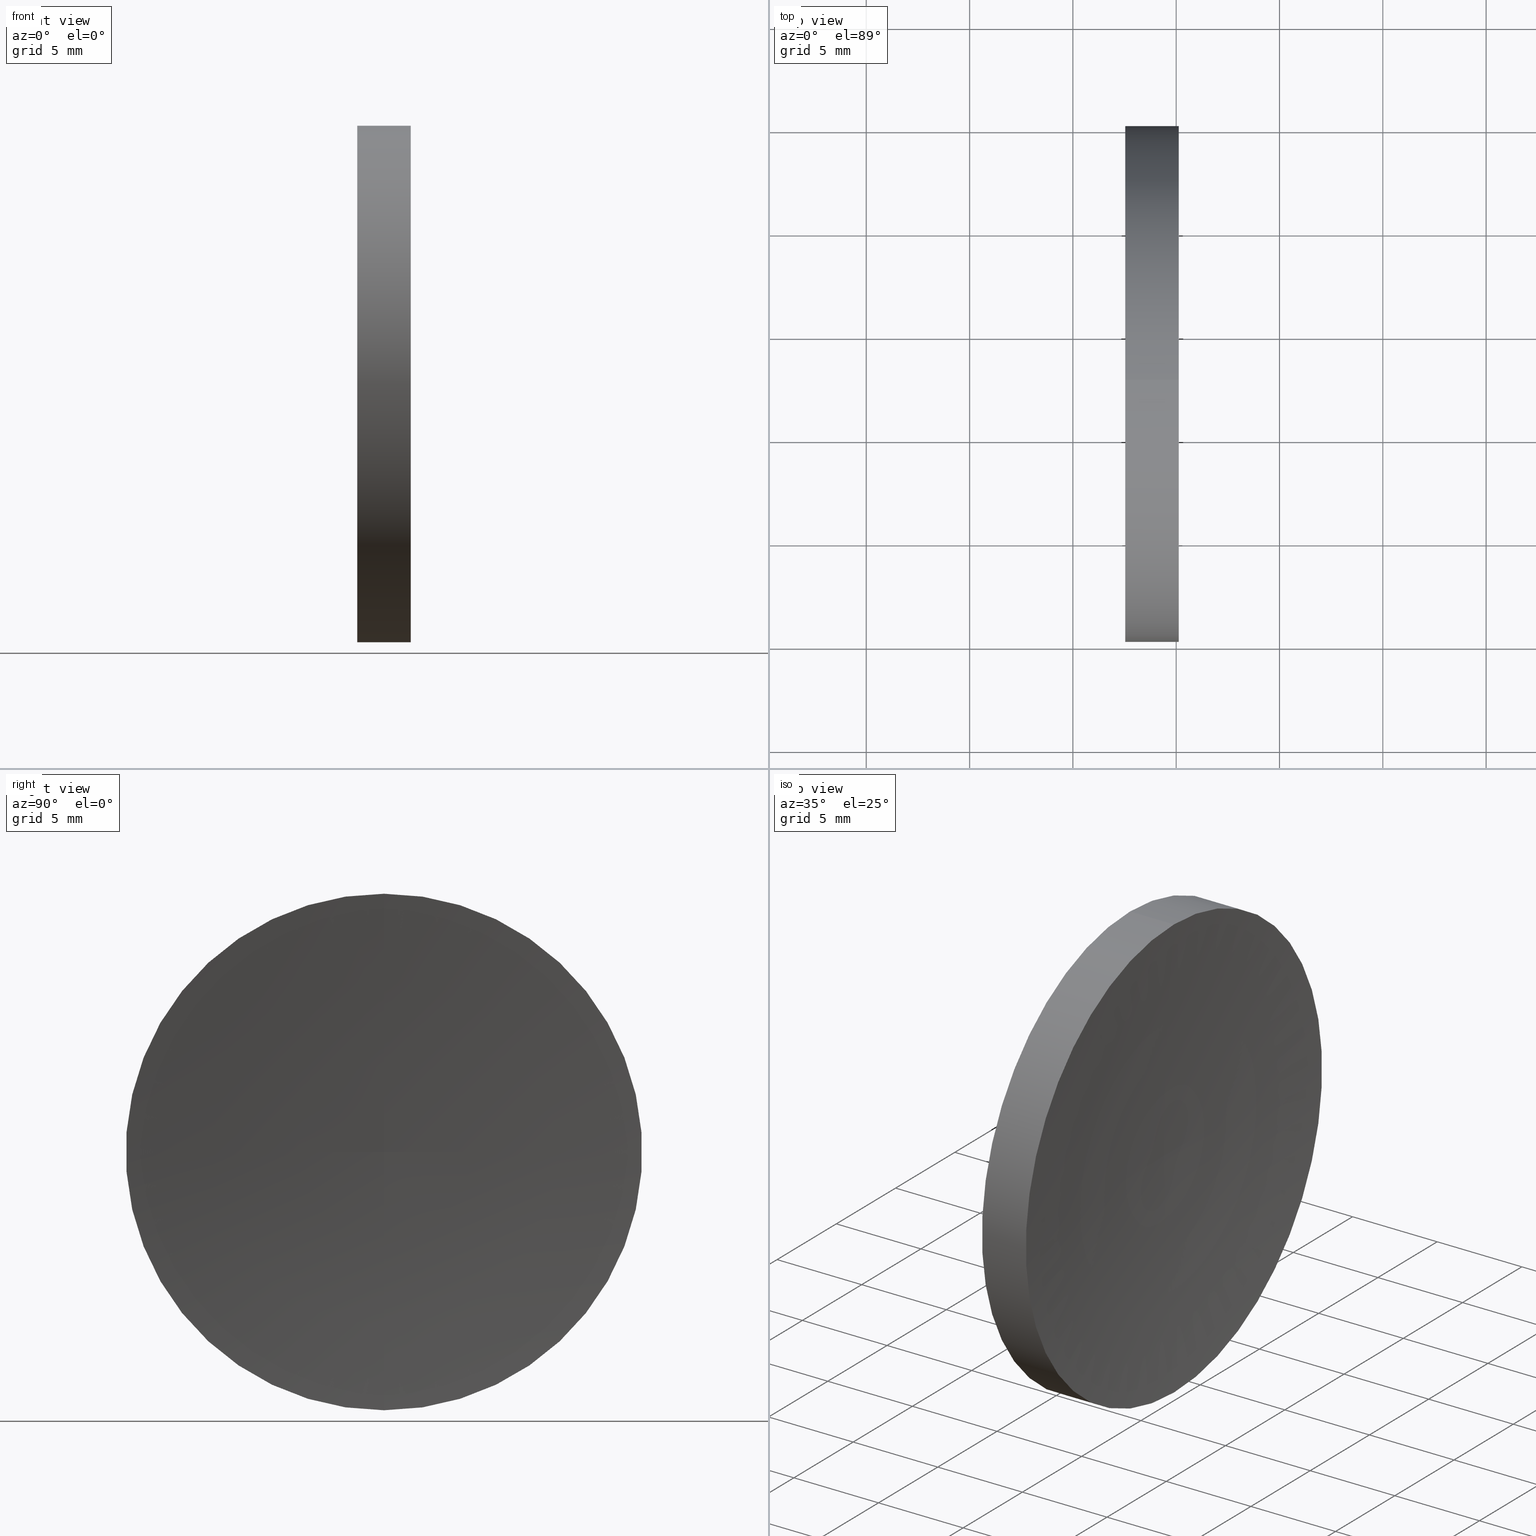
[diagram: canonical four-view strip — front | top / right | iso, engineering-drawing reading convention]
A machine part, canonical four-view strip (front | top / right | iso — engineering-drawing reading convention). The complete STEP part file that produces these views, byte-faithful:
ISO-10303-21;
HEADER;
FILE_DESCRIPTION (( 'STEP AP214' ),
    '1' );
FILE_NAME ('120039.STEP',
    '2019-06-17T05:50:44',
    ( '' ),
    ( '' ),
    'SwSTEP 2.0',
    'SolidWorks 2016',
    '' );
FILE_SCHEMA (( 'AUTOMOTIVE_DESIGN' ));
ENDSEC;

DATA;
#1 = APPLICATION_PROTOCOL_DEFINITION ( 'draft international standard', 'automotive_design', 1998, #132 ) ;
#2 = VECTOR ( 'NONE', #149, 1000.000000000000000 ) ;
#3 = TOROIDAL_SURFACE ( 'NONE', #25, 0.1459030683174933300, 129.1300000000000000 ) ;
#4 = PLANE ( 'NONE',  #71 ) ;
#5 = ORIENTED_EDGE ( 'NONE', *, *, #35, .F. ) ;
#6 = EDGE_LOOP ( 'NONE', ( #153, #41 ) ) ;
#7 = ADVANCED_BREP_SHAPE_REPRESENTATION ( '120039', ( #106, #99 ), #103 ) ;
#8 = ORIENTED_EDGE ( 'NONE', *, *, #87, .T. ) ;
#9 = EDGE_CURVE ( 'NONE', #34, #128, #107, .T. ) ;
#10 = DIRECTION ( 'NONE',  ( 1.000000000000000000, 0.0000000000000000000, 0.0000000000000000000 ) ) ;
#11 = SURFACE_STYLE_USAGE ( .BOTH. , #51 ) ;
#12 = COLOUR_RGB ( '',1.000000000000000000, 1.000000000000000000, 1.000000000000000000 ) ;
#13 =( NAMED_UNIT ( * ) PLANE_ANGLE_UNIT ( ) SI_UNIT ( $, .RADIAN. ) );
#14 = CIRCLE ( 'NONE', #154, 12.49999999999999600 ) ;
#15 = CARTESIAN_POINT ( 'NONE',  ( 56.10091507999716500, 32.61076812922678400, 0.0000000000000000000 ) ) ;
#16 = ORIENTED_EDGE ( 'NONE', *, *, #70, .F. ) ;
#17 = DIRECTION ( 'NONE',  ( 0.0000000000000000000, -1.074714458903001400E-016, 1.000000000000000000 ) ) ;
#18 = CARTESIAN_POINT ( 'NONE',  ( 57.53233705252611700, 32.61076812922678400, 0.0000000000000000000 ) ) ;
#19 =( GEOMETRIC_REPRESENTATION_CONTEXT ( 3 ) GLOBAL_UNCERTAINTY_ASSIGNED_CONTEXT ( ( #136 ) ) GLOBAL_UNIT_ASSIGNED_CONTEXT ( ( #37, #13, #152 ) ) REPRESENTATION_CONTEXT ( 'NONE', 'WORKASPACE' ) );
#20 = CARTESIAN_POINT ( 'NONE',  ( 188.6622546250803800, 32.61076812922678400, -0.1459030683174933300 ) ) ;
#21 = UNCERTAINTY_MEASURE_WITH_UNIT (LENGTH_MEASURE( 1.000000000000000100E-005 ), #165, 'distance_accuracy_value', 'NONE');
#22 = DIRECTION ( 'NONE',  ( 0.0000000000000000000, 0.0000000000000000000, -1.000000000000000000 ) ) ;
#23 = DIRECTION ( 'NONE',  ( 0.0000000000000000000, 0.0000000000000000000, 1.000000000000000000 ) ) ;
#24 =( NAMED_UNIT ( * ) PLANE_ANGLE_UNIT ( ) SI_UNIT ( $, .RADIAN. ) );
#25 = AXIS2_PLACEMENT_3D ( 'NONE', #125, #123, #74 ) ;
#26 = FACE_OUTER_BOUND ( 'NONE', #48, .T. ) ;
#27 = AXIS2_PLACEMENT_3D ( 'NONE', #92, #78, #77 ) ;
#28 = CYLINDRICAL_SURFACE ( 'NONE', #100, 12.49999999999999600 ) ;
#29 = EDGE_LOOP ( 'NONE', ( #140, #113, #116, #126 ) ) ;
#30 = CARTESIAN_POINT ( 'NONE',  ( 60.12458236903478300, 32.61076812922678400, -12.49999999999994100 ) ) ;
#31 = EDGE_CURVE ( 'NONE', #80, #93, #164, .T. ) ;
#32 = CARTESIAN_POINT ( 'NONE',  ( 188.6622546250803800, 32.61076812922678400, 0.0000000000000000000 ) ) ;
#33 = DIRECTION ( 'NONE',  ( 1.000000000000000000, 0.0000000000000000000, 0.0000000000000000000 ) ) ;
#34 = VERTEX_POINT ( 'NONE', #30 ) ;
#35 = EDGE_CURVE ( 'NONE', #80, #34, #122, .T. ) ;
#36 = SURFACE_STYLE_USAGE ( .BOTH. , #144 ) ;
#37 =( LENGTH_UNIT ( ) NAMED_UNIT ( * ) SI_UNIT ( .MILLI., .METRE. ) );
#38 = DIRECTION ( 'NONE',  ( 0.0000000000000000000, 0.0000000000000000000, 1.000000000000000000 ) ) ;
#39 = EDGE_CURVE ( 'NONE', #34, #61, #84, .T. ) ;
#40 = ADVANCED_FACE ( 'NONE', ( #26 ), #28, .T. ) ;
#41 = ORIENTED_EDGE ( 'NONE', *, *, #70, .T. ) ;
#42 = CARTESIAN_POINT ( 'NONE',  ( 59.53233705252613800, 32.61076812922678400, 0.0000000000000000000 ) ) ;
#43 = CARTESIAN_POINT ( 'NONE',  ( 57.53233705252611700, 32.61076812922678400, 0.0000000000000000000 ) ) ;
#44 = DIRECTION ( 'NONE',  ( -1.000000000000000000, -0.0000000000000000000, -0.0000000000000000000 ) ) ;
#45 = FACE_OUTER_BOUND ( 'NONE', #29, .T. ) ;
#46 = DIRECTION ( 'NONE',  ( 0.0000000000000000000, 0.0000000000000000000, -1.000000000000000000 ) ) ;
#47 = PRODUCT_DEFINITION_SHAPE ( 'NONE', 'NONE',  #82 ) ;
#48 = EDGE_LOOP ( 'NONE', ( #105, #8, #150, #16 ) ) ;
#49 = PRESENTATION_LAYER_ASSIGNMENT (  '', '', ( #145 ) ) ;
#50 =( NAMED_UNIT ( * ) SI_UNIT ( $, .STERADIAN. ) SOLID_ANGLE_UNIT ( ) );
#51 = SURFACE_SIDE_STYLE ('',( #163 ) ) ;
#52 = CARTESIAN_POINT ( 'NONE',  ( 57.53233705252611700, 32.61076812922678400, 0.0000000000000000000 ) ) ;
#53 = ADVANCED_FACE ( 'NONE', ( #141 ), #135, .F. ) ;
#54 = DIRECTION ( 'NONE',  ( 0.0000000000000000000, 0.0000000000000000000, 1.000000000000000000 ) ) ;
#55 = COLOUR_RGB ( '',1.000000000000000000, 1.000000000000000000, 1.000000000000000000 ) ;
#56 = PRESENTATION_LAYER_ASSIGNMENT (  '', '', ( #91 ) ) ;
#57 = DIRECTION ( 'NONE',  ( -1.000000000000000000, -0.0000000000000000000, -0.0000000000000000000 ) ) ;
#58 = CYLINDRICAL_SURFACE ( 'NONE', #27, 12.49999999999999600 ) ;
#59 = CARTESIAN_POINT ( 'NONE',  ( 188.6622546250803800, 32.61076812922678400, 0.1459030683174933300 ) ) ;
#60 = AXIS2_PLACEMENT_3D ( 'NONE', #20, #159, #17 ) ;
#61 = VERTEX_POINT ( 'NONE', #42 ) ;
#62 = ORIENTED_EDGE ( 'NONE', *, *, #39, .F. ) ;
#63 = PRODUCT_CONTEXT ( 'NONE', #132, 'mechanical' ) ;
#64 = AXIS2_PLACEMENT_3D ( 'NONE', #32, #138, #54 ) ;
#65 = FILL_AREA_STYLE ('',( #90 ) ) ;
#66 = FACE_OUTER_BOUND ( 'NONE', #6, .T. ) ;
#67 = CARTESIAN_POINT ( 'NONE',  ( 60.12458236903478300, 32.61076812922678400, 0.0000000000000000000 ) ) ;
#68 = CARTESIAN_POINT ( 'NONE',  ( 56.10091507999716500, 32.61076812922678400, -12.49999999999999600 ) ) ;
#69 = DIRECTION ( 'NONE',  ( 0.0000000000000000000, 0.0000000000000000000, 1.000000000000000000 ) ) ;
#70 = EDGE_CURVE ( 'NONE', #128, #93, #146, .T. ) ;
#71 = AXIS2_PLACEMENT_3D ( 'NONE', #18, #33, #46 ) ;
#72 = CLOSED_SHELL ( 'NONE', ( #108, #95, #53, #40, #81 ) ) ;
#73 = ORIENTED_EDGE ( 'NONE', *, *, #39, .T. ) ;
#74 = DIRECTION ( 'NONE',  ( 0.0000000000000000000, 0.0000000000000000000, 1.000000000000000000 ) ) ;
#75 = CARTESIAN_POINT ( 'NONE',  ( 0.0000000000000000000, 0.0000000000000000000, 0.0000000000000000000 ) ) ;
#76 = PRESENTATION_STYLE_ASSIGNMENT (( #36 ) ) ;
#77 = DIRECTION ( 'NONE',  ( 0.0000000000000000000, 0.0000000000000000000, 1.000000000000000000 ) ) ;
#78 = DIRECTION ( 'NONE',  ( -1.000000000000000000, -0.0000000000000000000, -0.0000000000000000000 ) ) ;
#79 = AXIS2_PLACEMENT_3D ( 'NONE', #43, #157, #137 ) ;
#80 = VERTEX_POINT ( 'NONE', #111 ) ;
#81 = ADVANCED_FACE ( 'NONE', ( #66 ), #4, .F. ) ;
#82 = PRODUCT_DEFINITION ( 'δ֪', '', #109, #124 ) ;
#83 = AXIS2_PLACEMENT_3D ( 'NONE', #59, #162, #22 ) ;
#84 = CIRCLE ( 'NONE', #60, 129.1300000000000000 ) ;
#85 = EDGE_CURVE ( 'NONE', #80, #61, #160, .T. ) ;
#86 = SHAPE_DEFINITION_REPRESENTATION ( #47, #7 ) ;
#87 = EDGE_CURVE ( 'NONE', #34, #80, #14, .T. ) ;
#88 = EDGE_LOOP ( 'NONE', ( #62, #5, #131 ) ) ;
#89 = MECHANICAL_DESIGN_GEOMETRIC_PRESENTATION_REPRESENTATION (  '', ( #91 ), #156 ) ;
#90 = FILL_AREA_STYLE_COLOUR ( '', #12 ) ;
#91 = STYLED_ITEM ( 'NONE', ( #76 ), #106 ) ;
#92 = CARTESIAN_POINT ( 'NONE',  ( 56.10091507999716500, 32.61076812922678400, 0.0000000000000000000 ) ) ;
#93 = VERTEX_POINT ( 'NONE', #139 ) ;
#94 =( NAMED_UNIT ( * ) SI_UNIT ( $, .STERADIAN. ) SOLID_ANGLE_UNIT ( ) );
#95 = ADVANCED_FACE ( 'NONE', ( #98 ), #3, .F. ) ;
#96 = DIRECTION ( 'NONE',  ( -1.000000000000000000, -0.0000000000000000000, -0.0000000000000000000 ) ) ;
#97 = CIRCLE ( 'NONE', #110, 12.49999999999999600 ) ;
#98 = FACE_OUTER_BOUND ( 'NONE', #161, .T. ) ;
#99 = AXIS2_PLACEMENT_3D ( 'NONE', #75, #23, #10 ) ;
#100 = AXIS2_PLACEMENT_3D ( 'NONE', #15, #148, #114 ) ;
#101 = UNCERTAINTY_MEASURE_WITH_UNIT (LENGTH_MEASURE( 1.000000000000000100E-005 ), #118, 'distance_accuracy_value', 'NONE');
#102 = SURFACE_STYLE_FILL_AREA ( #117 ) ;
#103 =( GEOMETRIC_REPRESENTATION_CONTEXT ( 3 ) GLOBAL_UNCERTAINTY_ASSIGNED_CONTEXT ( ( #21 ) ) GLOBAL_UNIT_ASSIGNED_CONTEXT ( ( #165, #129, #94 ) ) REPRESENTATION_CONTEXT ( 'NONE', 'WORKASPACE' ) );
#104 = FILL_AREA_STYLE_COLOUR ( '', #55 ) ;
#105 = ORIENTED_EDGE ( 'NONE', *, *, #9, .F. ) ;
#106 = MANIFOLD_SOLID_BREP ( '��ת1', #72 ) ;
#107 = LINE ( 'NONE', #68, #2 ) ;
#108 = ADVANCED_FACE ( 'NONE', ( #45 ), #58, .T. ) ;
#109 = PRODUCT_DEFINITION_FORMATION_WITH_SPECIFIED_SOURCE ( '�κ�', '', #155, .NOT_KNOWN. ) ;
#110 = AXIS2_PLACEMENT_3D ( 'NONE', #52, #143, #38 ) ;
#111 = CARTESIAN_POINT ( 'NONE',  ( 60.12458236903478300, 32.61076812922678400, 12.49999999999994100 ) ) ;
#112 = DIRECTION ( 'NONE',  ( 0.0000000000000000000, 0.0000000000000000000, 1.000000000000000000 ) ) ;
#113 = ORIENTED_EDGE ( 'NONE', *, *, #9, .T. ) ;
#114 = DIRECTION ( 'NONE',  ( 0.0000000000000000000, 0.0000000000000000000, 1.000000000000000000 ) ) ;
#115 = ORIENTED_EDGE ( 'NONE', *, *, #87, .F. ) ;
#116 = ORIENTED_EDGE ( 'NONE', *, *, #133, .F. ) ;
#117 = FILL_AREA_STYLE ('',( #104 ) ) ;
#118 =( LENGTH_UNIT ( ) NAMED_UNIT ( * ) SI_UNIT ( .MILLI., .METRE. ) );
#119 = MECHANICAL_DESIGN_GEOMETRIC_PRESENTATION_REPRESENTATION (  '', ( #145 ), #19 ) ;
#120 = PRESENTATION_STYLE_ASSIGNMENT (( #11 ) ) ;
#121 = CARTESIAN_POINT ( 'NONE',  ( 57.53233705252611700, 32.61076812922678400, -12.49999999999999600 ) ) ;
#122 = CIRCLE ( 'NONE', #142, 12.49999999999999600 ) ;
#123 = DIRECTION ( 'NONE',  ( -1.000000000000000000, -0.0000000000000000000, -0.0000000000000000000 ) ) ;
#124 = PRODUCT_DEFINITION_CONTEXT ( 'detailed design', #166, 'design' ) ;
#125 = CARTESIAN_POINT ( 'NONE',  ( 188.6622546250803800, 32.61076812922678400, 0.0000000000000000000 ) ) ;
#126 = ORIENTED_EDGE ( 'NONE', *, *, #31, .F. ) ;
#127 = PRODUCT_RELATED_PRODUCT_CATEGORY ( 'part', '', ( #155 ) ) ;
#128 = VERTEX_POINT ( 'NONE', #121 ) ;
#129 =( NAMED_UNIT ( * ) PLANE_ANGLE_UNIT ( ) SI_UNIT ( $, .RADIAN. ) );
#130 = APPLICATION_PROTOCOL_DEFINITION ( 'draft international standard', 'automotive_design', 1998, #166 ) ;
#131 = ORIENTED_EDGE ( 'NONE', *, *, #85, .T. ) ;
#132 = APPLICATION_CONTEXT ( 'automotive_design' ) ;
#133 = EDGE_CURVE ( 'NONE', #93, #128, #97, .T. ) ;
#134 = VECTOR ( 'NONE', #96, 1000.000000000000000 ) ;
#135 = TOROIDAL_SURFACE ( 'NONE', #64, 0.1459030683174933300, 129.1300000000000000 ) ;
#136 = UNCERTAINTY_MEASURE_WITH_UNIT (LENGTH_MEASURE( 1.000000000000000100E-005 ), #37, 'distance_accuracy_value', 'NONE');
#137 = DIRECTION ( 'NONE',  ( 0.0000000000000000000, 0.0000000000000000000, 1.000000000000000000 ) ) ;
#138 = DIRECTION ( 'NONE',  ( -1.000000000000000000, -0.0000000000000000000, -0.0000000000000000000 ) ) ;
#139 = CARTESIAN_POINT ( 'NONE',  ( 57.53233705252611700, 32.61076812922678400, 12.49999999999999600 ) ) ;
#140 = ORIENTED_EDGE ( 'NONE', *, *, #35, .T. ) ;
#141 = FACE_OUTER_BOUND ( 'NONE', #88, .T. ) ;
#142 = AXIS2_PLACEMENT_3D ( 'NONE', #67, #44, #112 ) ;
#143 = DIRECTION ( 'NONE',  ( -1.000000000000000000, -0.0000000000000000000, -0.0000000000000000000 ) ) ;
#144 = SURFACE_SIDE_STYLE ('',( #102 ) ) ;
#145 = STYLED_ITEM ( 'NONE', ( #120 ), #7 ) ;
#146 = CIRCLE ( 'NONE', #79, 12.49999999999999600 ) ;
#147 = CARTESIAN_POINT ( 'NONE',  ( 56.10091507999716500, 32.61076812922678400, 12.49999999999999600 ) ) ;
#148 = DIRECTION ( 'NONE',  ( -1.000000000000000000, -0.0000000000000000000, -0.0000000000000000000 ) ) ;
#149 = DIRECTION ( 'NONE',  ( -1.000000000000000000, -0.0000000000000000000, -0.0000000000000000000 ) ) ;
#150 = ORIENTED_EDGE ( 'NONE', *, *, #31, .T. ) ;
#151 = CARTESIAN_POINT ( 'NONE',  ( 60.12458236903478300, 32.61076812922678400, 0.0000000000000000000 ) ) ;
#152 =( NAMED_UNIT ( * ) SI_UNIT ( $, .STERADIAN. ) SOLID_ANGLE_UNIT ( ) );
#153 = ORIENTED_EDGE ( 'NONE', *, *, #133, .T. ) ;
#154 = AXIS2_PLACEMENT_3D ( 'NONE', #151, #57, #69 ) ;
#155 = PRODUCT ( '120039', '120039', '', ( #63 ) ) ;
#156 =( GEOMETRIC_REPRESENTATION_CONTEXT ( 3 ) GLOBAL_UNCERTAINTY_ASSIGNED_CONTEXT ( ( #101 ) ) GLOBAL_UNIT_ASSIGNED_CONTEXT ( ( #118, #24, #50 ) ) REPRESENTATION_CONTEXT ( 'NONE', 'WORKASPACE' ) );
#157 = DIRECTION ( 'NONE',  ( -1.000000000000000000, -0.0000000000000000000, -0.0000000000000000000 ) ) ;
#158 = ORIENTED_EDGE ( 'NONE', *, *, #85, .F. ) ;
#159 = DIRECTION ( 'NONE',  ( -0.0000000000000000000, 1.000000000000000000, 1.224646799147353200E-016 ) ) ;
#160 = CIRCLE ( 'NONE', #83, 129.1300000000000000 ) ;
#161 = EDGE_LOOP ( 'NONE', ( #115, #73, #158 ) ) ;
#162 = DIRECTION ( 'NONE',  ( 0.0000000000000000000, -1.000000000000000000, 0.0000000000000000000 ) ) ;
#163 = SURFACE_STYLE_FILL_AREA ( #65 ) ;
#164 = LINE ( 'NONE', #147, #134 ) ;
#165 =( LENGTH_UNIT ( ) NAMED_UNIT ( * ) SI_UNIT ( .MILLI., .METRE. ) );
#166 = APPLICATION_CONTEXT ( 'automotive_design' ) ;
ENDSEC;
END-ISO-10303-21;
